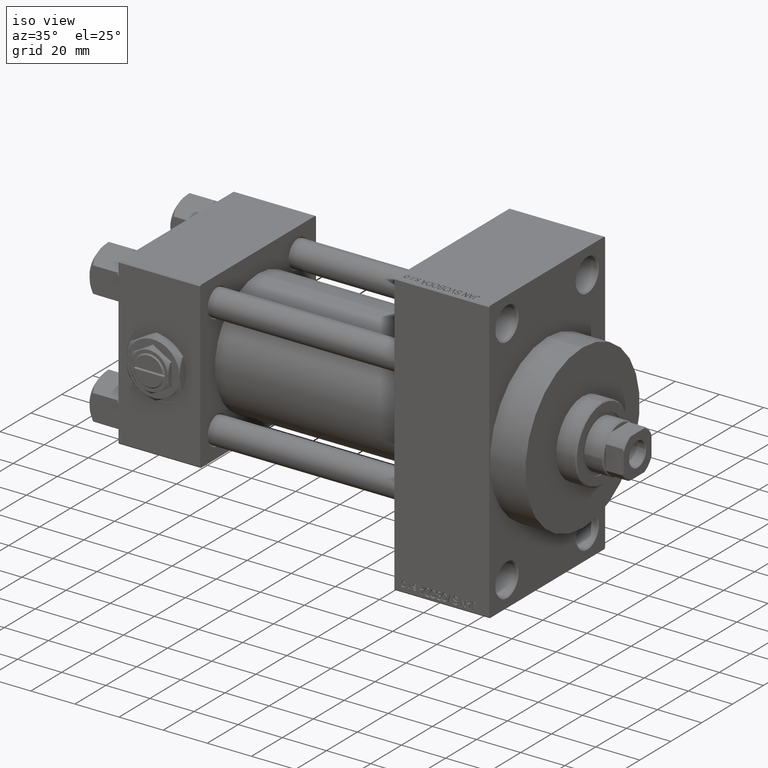
[diagram: clean part render]
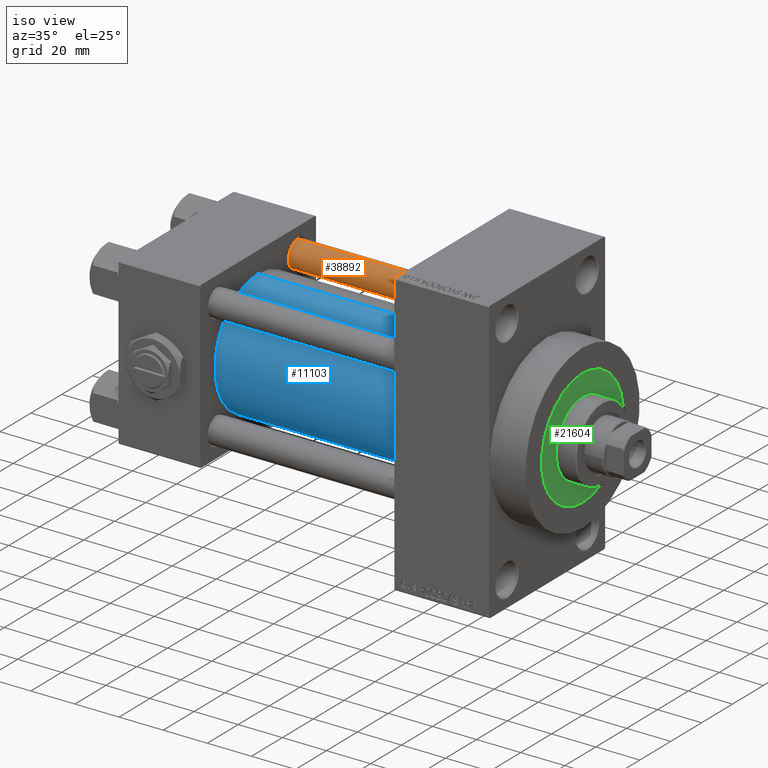
[diagram: same view with three faces highlighted in distinct colors, each labeled with its STEP entity id]
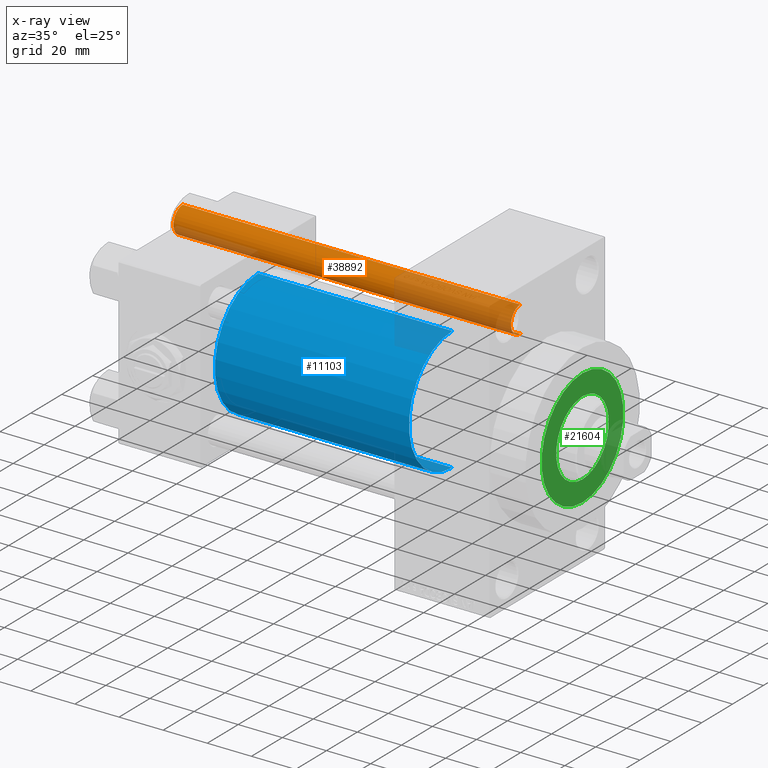
[diagram: x-ray of the same camera — body ghosted, the three highlighted faces saturated]
A machine part, iso view with three faces highlighted in distinct colors.
The next image is the same camera in x-ray (body ghosted, the three faces saturated) — at least one of them is partly hidden behind the body in this view.
Their STEP definitions:

[orange] entity #38892 — the highlighted cylindrical surface (edge-blend (fillet) strip) has radius 6 mm, axis along (1, -0, -0).
#1797 = VECTOR ( 'NONE', #29465, 1000.000000000000000 ) ;
#1910 = CARTESIAN_POINT ( 'NONE',  ( 6.000000000000000888, 7.347880794884120722E-16, 154.0000000000000000 ) ) ;
#2250 = AXIS2_PLACEMENT_3D ( 'NONE', #13599, #25628, #39906 ) ;
#2271 = CYLINDRICAL_SURFACE ( 'NONE', #2250, 6.000000000000000888 ) ;
#4042 = CIRCLE ( 'NONE', #15031, 6.000000000000000888 ) ;
#5722 = VERTEX_POINT ( 'NONE', #5990 ) ;
#5990 = CARTESIAN_POINT ( 'NONE',  ( -6.000000000000000888, 0.000000000000000000, 153.5000000000000000 ) ) ;
#6579 = EDGE_LOOP ( 'NONE', ( #31741, #36608, #9601, #25619 ) ) ;
#7369 = DIRECTION ( 'NONE',  ( 1.000000000000000000, 0.000000000000000000, 0.000000000000000000 ) ) ;
#7953 = VERTEX_POINT ( 'NONE', #21984 ) ;
#9601 = ORIENTED_EDGE ( 'NONE', *, *, #23215, .T. ) ;
#12584 = CARTESIAN_POINT ( 'NONE',  ( 6.000000000000000888, 7.347880794884120722E-16, 0.5000000000000281997 ) ) ;
#13599 = CARTESIAN_POINT ( 'NONE',  ( 0.000000000000000000, 0.000000000000000000, 154.0000000000000000 ) ) ;
#15031 = AXIS2_PLACEMENT_3D ( 'NONE', #17740, #32739, #31782 ) ;
#15781 = EDGE_CURVE ( 'NONE', #7953, #46410, #4042, .T. ) ;
#17257 = AXIS2_PLACEMENT_3D ( 'NONE', #26318, #37611, #7369 ) ;
#17740 = CARTESIAN_POINT ( 'NONE',  ( 0.000000000000000000, 0.000000000000000000, 0.5000000000000281997 ) ) ;
#18684 = EDGE_CURVE ( 'NONE', #35375, #46410, #36563, .T. ) ;
#20080 = CARTESIAN_POINT ( 'NONE',  ( 6.000000000000000888, 7.347880794884120722E-16, 153.5000000000000000 ) ) ;
#20477 = VECTOR ( 'NONE', #25018, 1000.000000000000000 ) ;
#21984 = CARTESIAN_POINT ( 'NONE',  ( -6.000000000000000888, 0.000000000000000000, 0.5000000000000281997 ) ) ;
#22309 = CARTESIAN_POINT ( 'NONE',  ( -6.000000000000000888, 0.000000000000000000, 154.0000000000000000 ) ) ;
#23215 = EDGE_CURVE ( 'NONE', #5722, #7953, #40531, .T. ) ;
#24669 = FACE_OUTER_BOUND ( 'NONE', #6579, .T. ) ;
#25018 = DIRECTION ( 'NONE',  ( -0.000000000000000000, -0.000000000000000000, -1.000000000000000000 ) ) ;
#25619 = ORIENTED_EDGE ( 'NONE', *, *, #15781, .T. ) ;
#25628 = DIRECTION ( 'NONE',  ( -0.000000000000000000, -0.000000000000000000, -1.000000000000000000 ) ) ;
#26318 = CARTESIAN_POINT ( 'NONE',  ( 0.000000000000000000, 0.000000000000000000, 153.5000000000000000 ) ) ;
#29465 = DIRECTION ( 'NONE',  ( -0.000000000000000000, -0.000000000000000000, -1.000000000000000000 ) ) ;
#31741 = ORIENTED_EDGE ( 'NONE', *, *, #18684, .F. ) ;
#31782 = DIRECTION ( 'NONE',  ( 1.000000000000000000, 0.000000000000000000, 0.000000000000000000 ) ) ;
#32739 = DIRECTION ( 'NONE',  ( -0.000000000000000000, -0.000000000000000000, 1.000000000000000000 ) ) ;
#35375 = VERTEX_POINT ( 'NONE', #20080 ) ;
#36563 = LINE ( 'NONE', #1910, #20477 ) ;
#36608 = ORIENTED_EDGE ( 'NONE', *, *, #42532, .T. ) ;
#37611 = DIRECTION ( 'NONE',  ( 0.000000000000000000, 0.000000000000000000, -1.000000000000000000 ) ) ;
#38479 = CIRCLE ( 'NONE', #17257, 6.000000000000000888 ) ;
#38892 = ADVANCED_FACE ( 'NONE', ( #24669 ), #2271, .T. ) ;
#39906 = DIRECTION ( 'NONE',  ( -1.000000000000000000, 0.000000000000000000, 0.000000000000000000 ) ) ;
#40531 = LINE ( 'NONE', #22309, #1797 ) ;
#42532 = EDGE_CURVE ( 'NONE', #35375, #5722, #38479, .T. ) ;
#46410 = VERTEX_POINT ( 'NONE', #12584 ) ;

[blue] entity #11103 — the highlighted cylindrical surface (partial cylindrical patch) has radius 28 mm, axis along (-1, -0, -0).
#728 = DIRECTION ( 'NONE',  ( 1.000000000000000000, -0.000000000000000000, 0.000000000000000000 ) ) ;
#1224 = CARTESIAN_POINT ( 'NONE',  ( 37.00000000000000711, -2.602085213965210642E-15, 0.000000000000000000 ) ) ;
#1492 = DIRECTION ( 'NONE',  ( -1.000000000000000000, -0.000000000000000000, -0.000000000000000000 ) ) ;
#1584 = DIRECTION ( 'NONE',  ( 1.000000000000000000, 0.000000000000000000, 0.000000000000000000 ) ) ;
#3354 = AXIS2_PLACEMENT_3D ( 'NONE', #12078, #16469, #34682 ) ;
#3752 = EDGE_CURVE ( 'NONE', #19337, #26328, #34957, .T. ) ;
#5595 = VECTOR ( 'NONE', #1492, 1000.000000000000000 ) ;
#7107 = CARTESIAN_POINT ( 'NONE',  ( 125.0000000000000000, -2.602085213965210642E-15, 28.00000000000000000 ) ) ;
#7744 = CARTESIAN_POINT ( 'NONE',  ( 125.0000000000000000, 8.269258236473784371E-16, -28.00000000000000000 ) ) ;
#8897 = CARTESIAN_POINT ( 'NONE',  ( 125.0000000000000000, -2.602085213965210642E-15, 28.00000000000000000 ) ) ;
#9105 = FACE_OUTER_BOUND ( 'NONE', #41042, .T. ) ;
#11103 = ADVANCED_FACE ( 'NONE', ( #9105 ), #24107, .T. ) ;
#12078 = CARTESIAN_POINT ( 'NONE',  ( 125.0000000000000000, -2.602085213965210642E-15, 0.000000000000000000 ) ) ;
#14903 = AXIS2_PLACEMENT_3D ( 'NONE', #1224, #728, #15735 ) ;
#15304 = VERTEX_POINT ( 'NONE', #26960 ) ;
#15735 = DIRECTION ( 'NONE',  ( 0.000000000000000000, 0.000000000000000000, 1.000000000000000000 ) ) ;
#16469 = DIRECTION ( 'NONE',  ( -1.000000000000000000, -0.000000000000000000, -0.000000000000000000 ) ) ;
#19337 = VERTEX_POINT ( 'NONE', #7107 ) ;
#19803 = CARTESIAN_POINT ( 'NONE',  ( 125.0000000000000000, -2.602085213965210642E-15, 0.000000000000000000 ) ) ;
#22280 = CIRCLE ( 'NONE', #24663, 28.00000000000000000 ) ;
#24107 = CYLINDRICAL_SURFACE ( 'NONE', #3354, 28.00000000000000000 ) ;
#24663 = AXIS2_PLACEMENT_3D ( 'NONE', #19803, #1584, #46630 ) ;
#25058 = ORIENTED_EDGE ( 'NONE', *, *, #37264, .F. ) ;
#25421 = EDGE_CURVE ( 'NONE', #19337, #32801, #22280, .T. ) ;
#26328 = VERTEX_POINT ( 'NONE', #33370 ) ;
#26960 = CARTESIAN_POINT ( 'NONE',  ( 37.00000000000000711, 8.269258236473784371E-16, -28.00000000000000000 ) ) ;
#30647 = ORIENTED_EDGE ( 'NONE', *, *, #25421, .F. ) ;
#30718 = CARTESIAN_POINT ( 'NONE',  ( 125.0000000000000000, 8.269258236473784371E-16, -28.00000000000000000 ) ) ;
#32801 = VERTEX_POINT ( 'NONE', #30718 ) ;
#33370 = CARTESIAN_POINT ( 'NONE',  ( 37.00000000000000711, -2.602085213965210642E-15, 28.00000000000000000 ) ) ;
#34682 = DIRECTION ( 'NONE',  ( 0.000000000000000000, 0.000000000000000000, 1.000000000000000000 ) ) ;
#34957 = LINE ( 'NONE', #8897, #5595 ) ;
#36169 = CIRCLE ( 'NONE', #14903, 28.00000000000000000 ) ;
#37264 = EDGE_CURVE ( 'NONE', #32801, #15304, #37749, .T. ) ;
#37749 = LINE ( 'NONE', #7744, #43779 ) ;
#40517 = ORIENTED_EDGE ( 'NONE', *, *, #43538, .T. ) ;
#41042 = EDGE_LOOP ( 'NONE', ( #25058, #30647, #43347, #40517 ) ) ;
#43347 = ORIENTED_EDGE ( 'NONE', *, *, #3752, .T. ) ;
#43538 = EDGE_CURVE ( 'NONE', #26328, #15304, #36169, .T. ) ;
#43779 = VECTOR ( 'NONE', #45135, 1000.000000000000000 ) ;
#45135 = DIRECTION ( 'NONE',  ( -1.000000000000000000, -0.000000000000000000, -0.000000000000000000 ) ) ;
#46630 = DIRECTION ( 'NONE',  ( 0.000000000000000000, 0.000000000000000000, -1.000000000000000000 ) ) ;

[green] entity #21604 — the highlighted planar face has unit normal (1, 0, 0).
#986 = VERTEX_POINT ( 'NONE', #22765 ) ;
#1680 = EDGE_LOOP ( 'NONE', ( #41654, #41343 ) ) ;
#2135 = VERTEX_POINT ( 'NONE', #28625 ) ;
#2216 = DIRECTION ( 'NONE',  ( 0.000000000000000000, 0.000000000000000000, 1.000000000000000000 ) ) ;
#4678 = AXIS2_PLACEMENT_3D ( 'NONE', #16980, #2216, #47484 ) ;
#5010 = CARTESIAN_POINT ( 'NONE',  ( 0.000000000000000000, 0.000000000000000000, 43.25999999999999801 ) ) ;
#5114 = AXIS2_PLACEMENT_3D ( 'NONE', #34337, #38040, #44918 ) ;
#6346 = DIRECTION ( 'NONE',  ( 0.000000000000000000, 0.000000000000000000, 1.000000000000000000 ) ) ;
#6610 = DIRECTION ( 'NONE',  ( 1.000000000000000000, 0.000000000000000000, -0.000000000000000000 ) ) ;
#6631 = CIRCLE ( 'NONE', #5114, 26.50000000000000355 ) ;
#7576 = FACE_BOUND ( 'NONE', #1680, .T. ) ;
#7631 = CARTESIAN_POINT ( 'NONE',  ( -17.00000000000000000, 0.000000000000000000, 43.25999999999999801 ) ) ;
#8685 = CARTESIAN_POINT ( 'NONE',  ( -26.50000000000000355, 0.000000000000000000, 43.25999999999999801 ) ) ;
#10880 = ORIENTED_EDGE ( 'NONE', *, *, #30376, .T. ) ;
#13744 = CARTESIAN_POINT ( 'NONE',  ( 0.000000000000000000, 0.000000000000000000, 43.25999999999999801 ) ) ;
#13991 = DIRECTION ( 'NONE',  ( 0.000000000000000000, 0.000000000000000000, 1.000000000000000000 ) ) ;
#16726 = AXIS2_PLACEMENT_3D ( 'NONE', #13744, #6346, #39821 ) ;
#16980 = CARTESIAN_POINT ( 'NONE',  ( 0.000000000000000000, 0.000000000000000000, 43.25999999999999801 ) ) ;
#20345 = VERTEX_POINT ( 'NONE', #7631 ) ;
#20587 = AXIS2_PLACEMENT_3D ( 'NONE', #33634, #13991, #6610 ) ;
#20986 = AXIS2_PLACEMENT_3D ( 'NONE', #5010, #39422, #42632 ) ;
#21604 = ADVANCED_FACE ( 'NONE', ( #7576, #44231 ), #29959, .T. ) ;
#22765 = CARTESIAN_POINT ( 'NONE',  ( 26.50000000000000355, 3.245314017740486554E-15, 43.25999999999999801 ) ) ;
#23128 = EDGE_CURVE ( 'NONE', #20345, #2135, #23822, .T. ) ;
#23822 = CIRCLE ( 'NONE', #16726, 17.00000000000000000 ) ;
#25861 = CIRCLE ( 'NONE', #4678, 26.50000000000000355 ) ;
#28625 = CARTESIAN_POINT ( 'NONE',  ( 17.00000000000000000, 2.081899558550500280E-15, 43.25999999999999801 ) ) ;
#29959 = PLANE ( 'NONE',  #20587 ) ;
#30376 = EDGE_CURVE ( 'NONE', #48666, #986, #6631, .T. ) ;
#33634 = CARTESIAN_POINT ( 'NONE',  ( 0.000000000000000000, 0.000000000000000000, 43.25999999999999801 ) ) ;
#34337 = CARTESIAN_POINT ( 'NONE',  ( 0.000000000000000000, 0.000000000000000000, 43.25999999999999801 ) ) ;
#37812 = EDGE_CURVE ( 'NONE', #2135, #20345, #42202, .T. ) ;
#38040 = DIRECTION ( 'NONE',  ( 0.000000000000000000, 0.000000000000000000, 1.000000000000000000 ) ) ;
#39422 = DIRECTION ( 'NONE',  ( 0.000000000000000000, 0.000000000000000000, 1.000000000000000000 ) ) ;
#39821 = DIRECTION ( 'NONE',  ( 1.000000000000000000, 0.000000000000000000, 0.000000000000000000 ) ) ;
#40055 = EDGE_LOOP ( 'NONE', ( #10880, #43764 ) ) ;
#41343 = ORIENTED_EDGE ( 'NONE', *, *, #37812, .F. ) ;
#41455 = EDGE_CURVE ( 'NONE', #986, #48666, #25861, .T. ) ;
#41654 = ORIENTED_EDGE ( 'NONE', *, *, #23128, .F. ) ;
#42202 = CIRCLE ( 'NONE', #20986, 17.00000000000000000 ) ;
#42632 = DIRECTION ( 'NONE',  ( 1.000000000000000000, 0.000000000000000000, 0.000000000000000000 ) ) ;
#43764 = ORIENTED_EDGE ( 'NONE', *, *, #41455, .T. ) ;
#44231 = FACE_OUTER_BOUND ( 'NONE', #40055, .T. ) ;
#44918 = DIRECTION ( 'NONE',  ( 1.000000000000000000, 0.000000000000000000, 0.000000000000000000 ) ) ;
#47484 = DIRECTION ( 'NONE',  ( 1.000000000000000000, 0.000000000000000000, 0.000000000000000000 ) ) ;
#48666 = VERTEX_POINT ( 'NONE', #8685 ) ;